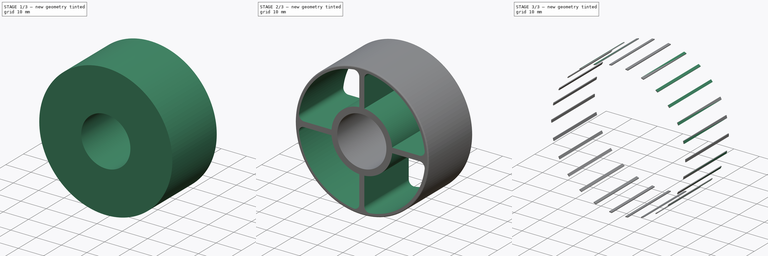
[diagram: build sequence overview — one tinted view per stage of 3, left to right]
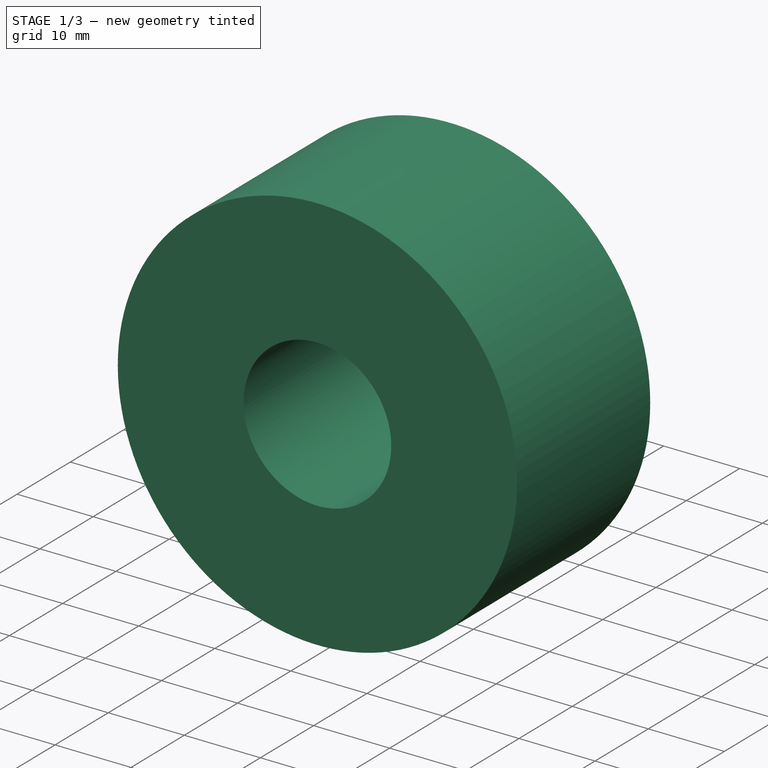
[diagram: stage 1 of 3 — iso view after this stage's code; geometry added in this stage tinted green]
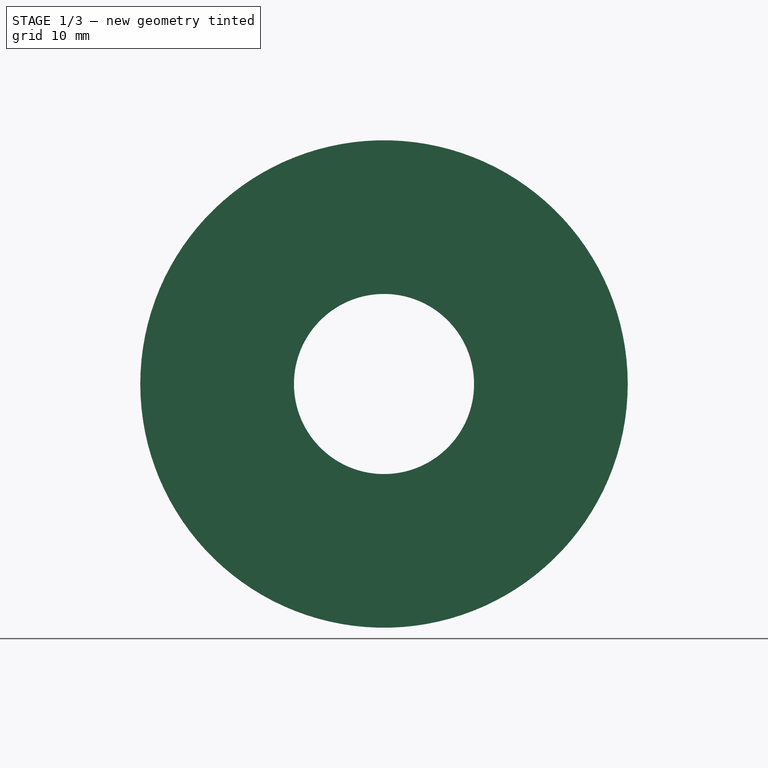
[diagram: stage 1 of 3 — front view after this stage's code; geometry added in this stage tinted green]
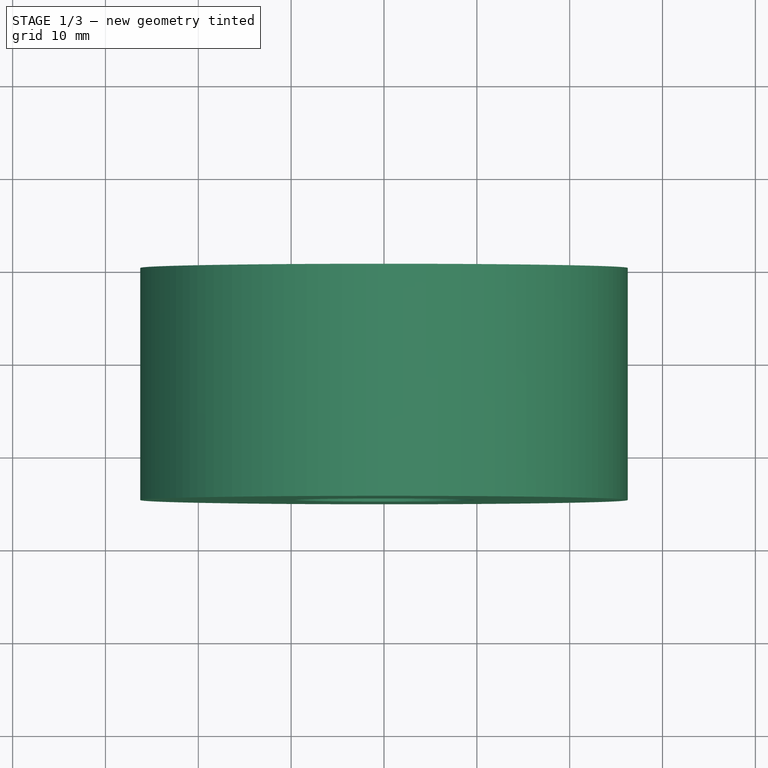
[diagram: stage 1 of 3 — top view after this stage's code; geometry added in this stage tinted green]
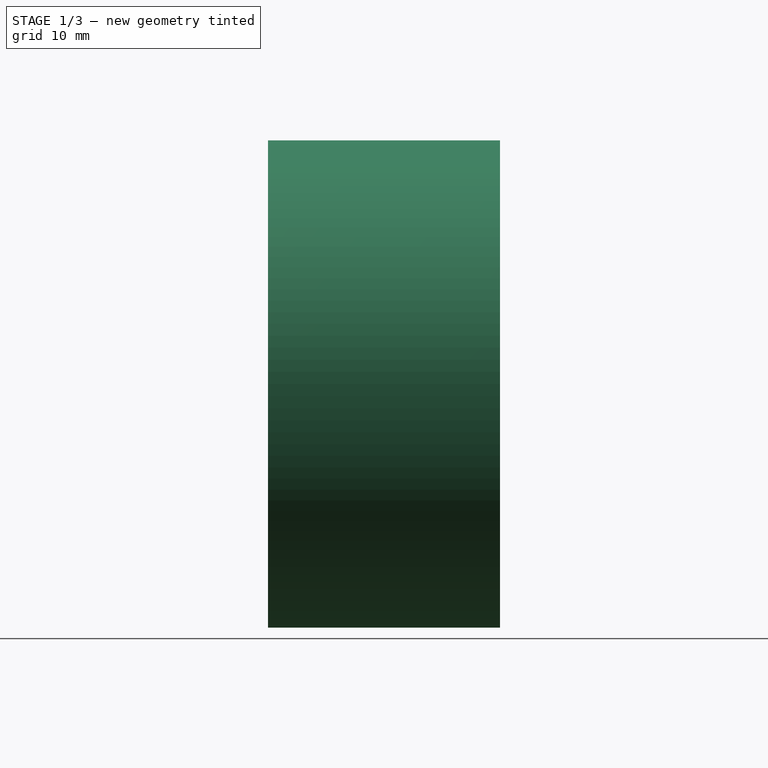
[diagram: stage 1 of 3 — right view after this stage's code; geometry added in this stage tinted green]
FCSTD DOCUMENT  (FreeCAD 0.18R16117 (Git))
Label: Roue centrale EVOL
License: All rights reserved
LicenseURL: http://en.wikipedia.org/wiki/All_rights_reserved
objects: Sketcher::SketchObject×4, PartDesign::Pad×2, PartDesign::Pocket×2, PartDesign::Body×2, PartDesign::Plane×2, PartDesign::Fillet×1, PartDesign::FeatureBase×1, Part::FeaturePython×1
note: 19 computed .brp shape members not serialized (recipe doc carries the construction recipe); baked Part::Feature solids carry a one-line shape summary decoded from their .brp

FEATURE [Sketcher::SketchObject] Sketch
  MapMode = 5
  Placement = pos=(0,0,0) rot=(1,0,0;1.5708rad)
  Support = -> [XZ_Plane]
  sketch-geometry (1):
    g0: Circle CenterX=0 CenterY=0 CenterZ=0 NormalX=0 NormalY=0 NormalZ=1 AngleXU=0 Radius=26.25
  constraints (2):
    c: Coincident(g0,g-1)
    c: Radius(g0) = 26.25
FEATURE [PartDesign::Pad] Pad
  Length = 25
  Length2 = 100
  Placement = pos=(0,0,0) rot=(1,0,0;1.5708rad)
  Profile = -> Sketch
  Type = 0
FEATURE [Sketcher::SketchObject] Sketch001
  MapMode = 5
  Placement = pos=(0,0,0) rot=(-1,0,0;1.5708rad)
  Support = -> [Pad]
  sketch-geometry (1):
    g0: Circle CenterX=0 CenterY=0 CenterZ=0 NormalX=0 NormalY=0 NormalZ=1 AngleXU=0 Radius=9.7
  constraints (2):
    c: Coincident(g0,g-1)
    c: Radius(g0) = 9.7
FEATURE [PartDesign::Pocket] Pocket
  BaseFeature = -> Pad
  Length = 5
  Length2 = 100
  Placement = pos=(0,0,0) rot=(1,0,0;1.5708rad)
  Profile = -> Sketch001
  Type = 1
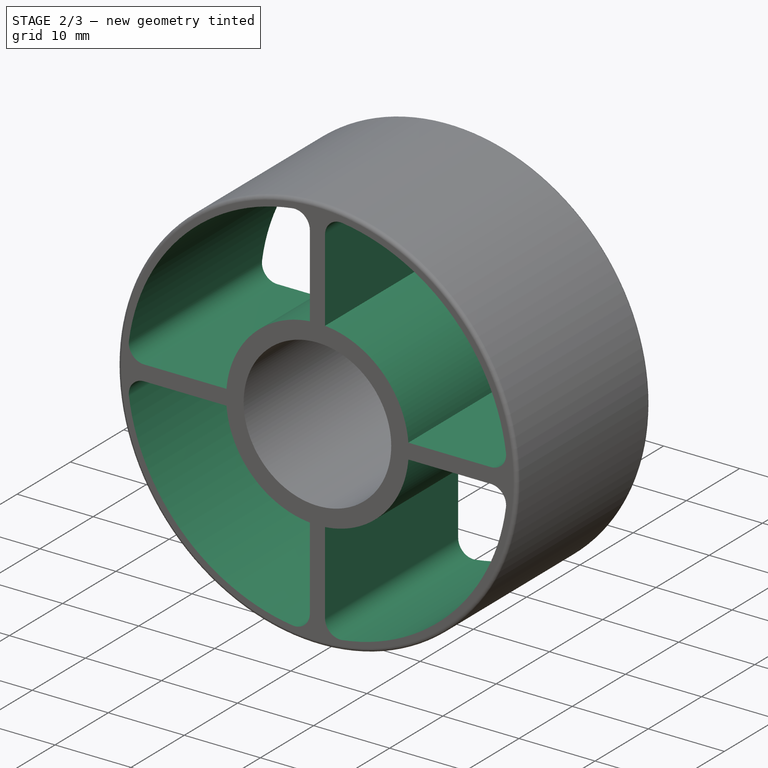
[diagram: stage 2 of 3 — iso view after this stage's code; geometry added in this stage tinted green]
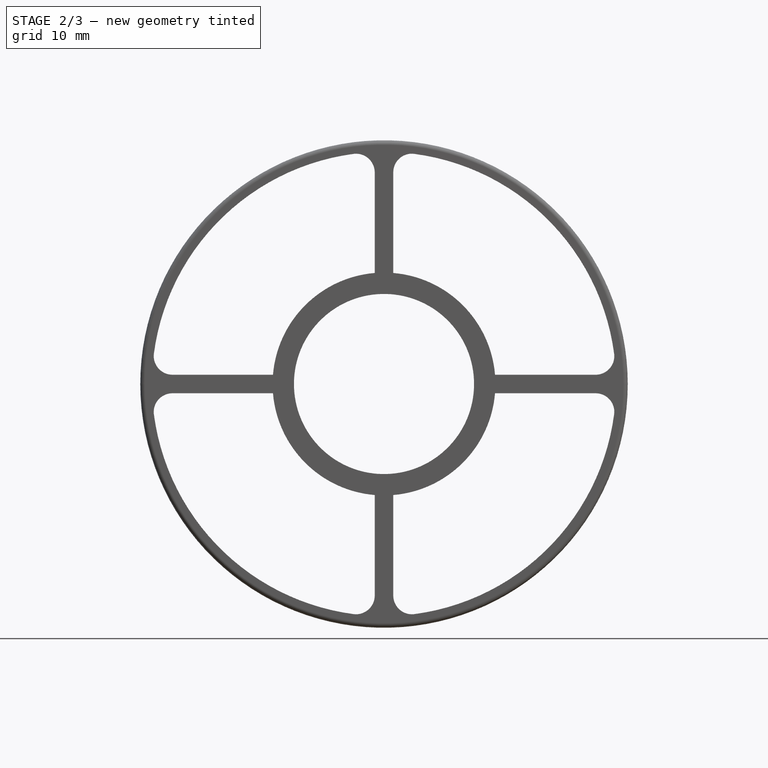
[diagram: stage 2 of 3 — front view after this stage's code; geometry added in this stage tinted green]
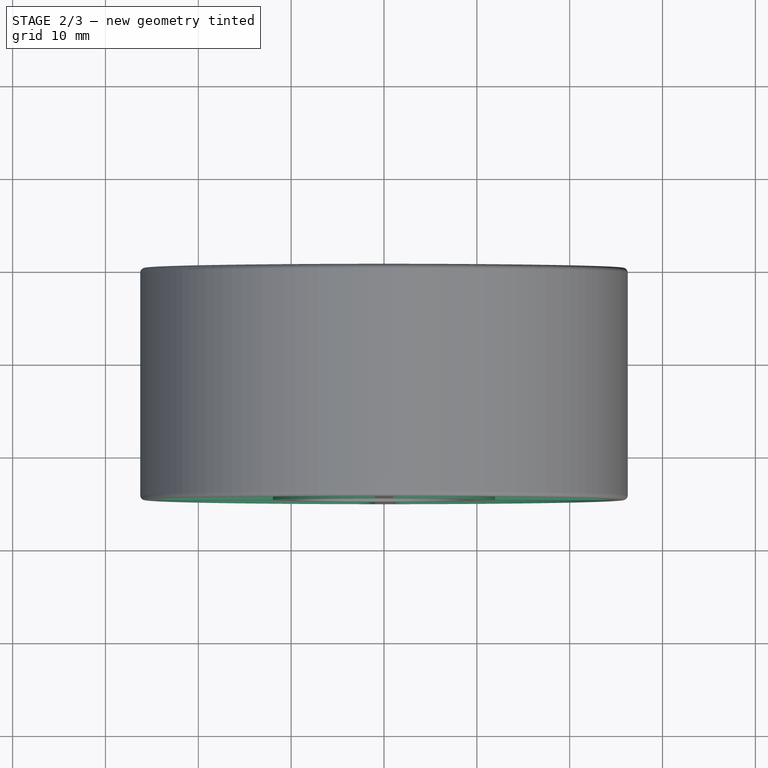
[diagram: stage 2 of 3 — top view after this stage's code; geometry added in this stage tinted green]
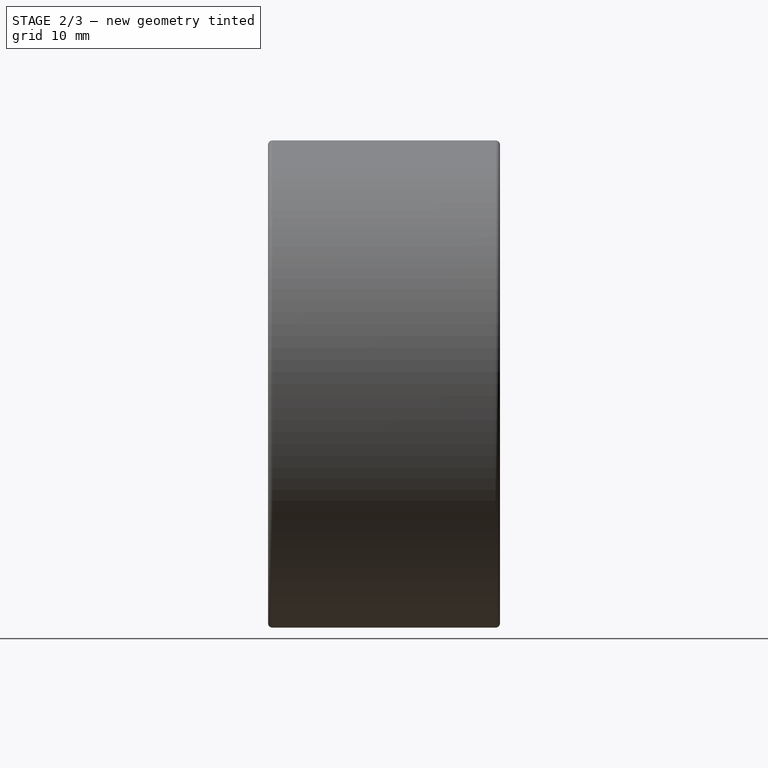
[diagram: stage 2 of 3 — right view after this stage's code; geometry added in this stage tinted green]
FEATURE [PartDesign::Fillet] Fillet
  Base = -> Pocket [Edge3,Edge2]
  BaseFeature = -> Pocket
  Placement = pos=(0,0,0) rot=(1,0,0;1.5708rad)
  Radius = 0.5
FEATURE [Sketcher::SketchObject] Sketch002
  MapMode = 5
  Placement = pos=(0,-25,1e-16) rot=(1,0,0;1.5708rad)
  Support = -> [Fillet]
  sketch-geometry (24):
    g0: LineSegment StartX=1 StartY=11.9583 StartZ=0 EndX=1 EndY=22.8035 EndZ=0
    g1: ArcOfCircle CenterX=0 CenterY=0 CenterZ=0 NormalX=0 NormalY=0 NormalZ=1 AngleXU=0 Radius=25 StartAngle=0.130807 EndAngle=1.43999
    g2: ArcOfCircle CenterX=0 CenterY=0 CenterZ=0 NormalX=0 NormalY=0 NormalZ=1 AngleXU=0 Radius=12 StartAngle=0.0834301 EndAngle=1.48737
    g3: LineSegment StartX=11.9583 StartY=1 StartZ=0 EndX=22.8035 EndY=1 EndZ=0
    g4: ArcOfCircle CenterX=3 CenterY=22.8035 CenterZ=0 NormalX=0 NormalY=0 NormalZ=1 AngleXU=0 Radius=2 StartAngle=1.43999 EndAngle=3.14159
    g5: ArcOfCircle CenterX=22.8035 CenterY=3 CenterZ=0 NormalX=0 NormalY=0 NormalZ=1 AngleXU=0 Radius=2 StartAngle=4.71239 EndAngle=6.41399
    g6: ArcOfCircle CenterX=0 CenterY=0 CenterZ=0 NormalX=0 NormalY=0 NormalZ=1 AngleXU=0 Radius=12 StartAngle=1.65423 EndAngle=3.05816
    g7: ArcOfCircle CenterX=0 CenterY=0 CenterZ=0 NormalX=0 NormalY=0 NormalZ=1 AngleXU=0 Radius=25 StartAngle=1.70247 EndAngle=3.00992
    g8: ArcOfCircle CenterX=0 CenterY=0 CenterZ=0 NormalX=0 NormalY=0 NormalZ=1 AngleXU=0 Radius=12 StartAngle=3.22502 EndAngle=4.62896
    g9: ArcOfCircle CenterX=0 CenterY=0 CenterZ=0 NormalX=0 NormalY=0 NormalZ=1 AngleXU=0 Radius=25 StartAngle=3.27327 EndAngle=4.58072
    g10: ArcOfCircle CenterX=0 CenterY=0 CenterZ=0 NormalX=0 NormalY=0 NormalZ=1 AngleXU=0 Radius=12 StartAngle=4.79582 EndAngle=6.19976
    g11: ArcOfCircle CenterX=0 CenterY=0 CenterZ=0 NormalX=0 NormalY=0 NormalZ=1 AngleXU=0 Radius=25 StartAngle=4.84406 EndAngle=6.15238
    g12: LineSegment StartX=-1 StartY=-22.7836 StartZ=0 EndX=-1 EndY=-11.9583 EndZ=0
    g13: LineSegment StartX=1 StartY=-11.9583 StartZ=0 EndX=1 EndY=-22.7836 EndZ=0
    g14: LineSegment StartX=11.9583 StartY=-1 StartZ=0 EndX=22.8035 EndY=-1 EndZ=0
    g15: LineSegment StartX=-1 StartY=11.9583 StartZ=0 EndX=-1 EndY=22.7836 EndZ=0
    g16: LineSegment StartX=-11.9583 StartY=1 StartZ=0 EndX=-22.7836 EndY=1 EndZ=0
    g17: LineSegment StartX=-11.9583 StartY=-1 StartZ=0 EndX=-22.7836 EndY=-1 EndZ=0
    g18: ArcOfCircle CenterX=-22.7836 CenterY=3.01746 CenterZ=0 NormalX=0 NormalY=0 NormalZ=1 AngleXU=0 Radius=2.01746 StartAngle=3.00992 EndAngle=4.71239
    g19: ArcOfCircle CenterX=-3.01746 CenterY=22.7836 CenterZ=0 NormalX=0 NormalY=0 NormalZ=1 AngleXU=0 Radius=2.01746 StartAngle=2e-16 EndAngle=1.70247
    g20: ArcOfCircle CenterX=-3.01746 CenterY=-22.7836 CenterZ=0 NormalX=0 NormalY=0 NormalZ=1 AngleXU=0 Radius=2.01746 StartAngle=4.58072 EndAngle=6.28319
    g21: ArcOfCircle CenterX=3.01746 CenterY=-22.7836 CenterZ=0 NormalX=0 NormalY=0 NormalZ=1 AngleXU=0 Radius=2.01746 StartAngle=3.14159 EndAngle=4.84406
    g22: ArcOfCircle CenterX=22.8035 CenterY=-3 CenterZ=0 NormalX=0 NormalY=0 NormalZ=1 AngleXU=0 Radius=2 StartAngle=6.15238 EndAngle=7.85398
    g23: ArcOfCircle CenterX=-22.7836 CenterY=-3.01746 CenterZ=0 NormalX=0 NormalY=0 NormalZ=1 AngleXU=0 Radius=2.01746 StartAngle=1.5708 EndAngle=3.27327
  constraints (64):
    c: Coincident(g1,g-1)
    c: Radius(g1) = 25
    c: Vertical(g0)
    c: Coincident(g2,g1)
    c: Radius(g2) = 12
    c: Coincident(g2,g0)
    c: Coincident(g3,g2)
    c: Horizontal(g3)
    c: DistanceY(g1,g2) = 1
    c: DistanceX(g1,g0) = 1
    c: Tangent(g0,g4) = 1.5708
    c: Tangent(g1,g4) = -1.5708
    c: Tangent(g1,g5) = -1.5708
    c: Tangent(g3,g5) = -1.5708
    c: DistanceX(g0,g4) = 2
    c: DistanceY(g3,g5) = 2
    c: Equal(g8,g2)
    c: Equal(g1,g9)
    c: Coincident(g12,g8)
    c: Vertical(g12)
    c: Vertical(g13)
    c: Vertical(g15)
    c: Horizontal(g16)
    c: Horizontal(g17)
    c: Horizontal(g14)
    c: Coincident(g14,g10)
    c: Coincident(g10,g13)
    c: Coincident(g15,g6)
    c: Coincident(g6,g16)
    c: Coincident(g9,g1)
    c: Coincident(g7,g1)
    c: Coincident(g6,g1)
    c: Coincident(g10,g1)
    c: Coincident(g11,g1)
    c: Coincident(g1,g8)
    c: Coincident(g8,g17)
    c: Equal(g10,g2)
    c: Equal(g6,g2)
    c: Equal(g11,g1)
    c: Equal(g7,g1)
    c: Tangent(g16,g18) = 1.5708
    c: Tangent(g7,g18) = -1.5708
    c: Tangent(g15,g19) = -1.5708
    c: Tangent(g7,g19) = -1.5708
    c: Tangent(g12,g20) = -1.5708
    c: Tangent(g9,g20) = -1.5708
    c: Tangent(g11,g21) = -1.5708
    c: Tangent(g13,g21) = -1.5708
    c: Tangent(g14,g22) = 1.5708
    c: Tangent(g11,g22) = -1.5708
    c: Tangent(g17,g23) = -1.5708
    c: Tangent(g9,g23) = -1.5708
    c: DistanceY(g22,g14) = 2
    c: DistanceY(g11,g21) = 2
    c: DistanceY(g9,g20) = 2
    c: DistanceX(g8,g1) = 1
    c: DistanceX(g1,g13) = 1
    c: DistanceX(g9,g23) = 2
    c: DistanceX(g7,g18) = 2
    c: DistanceY(g1,g6) = 1
    c: DistanceY(g8,g1) = 1
    c: DistanceX(g6,g1) = 1
    c: DistanceY(g10,g1) = 1
    c: DistanceY(g19,g7) = 2
FEATURE [PartDesign::Pocket] Pocket001
  BaseFeature = -> Fillet
  Length = 5
  Length2 = 100
  Placement = pos=(0,0,0) rot=(1,0,0;1.5708rad)
  Profile = -> Sketch002
  Type = 1
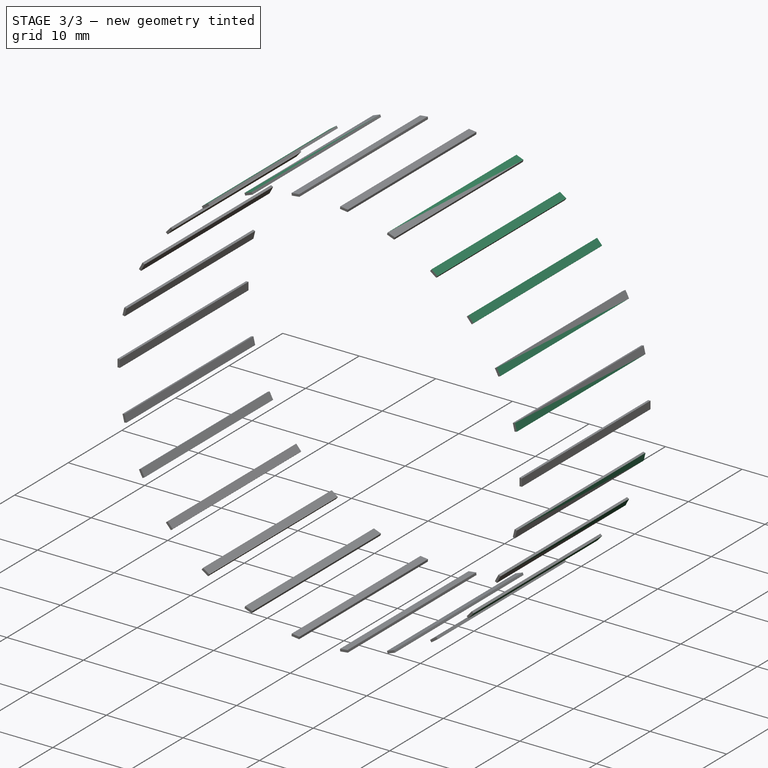
[diagram: stage 3 of 3 — iso view after this stage's code; geometry added in this stage tinted green]
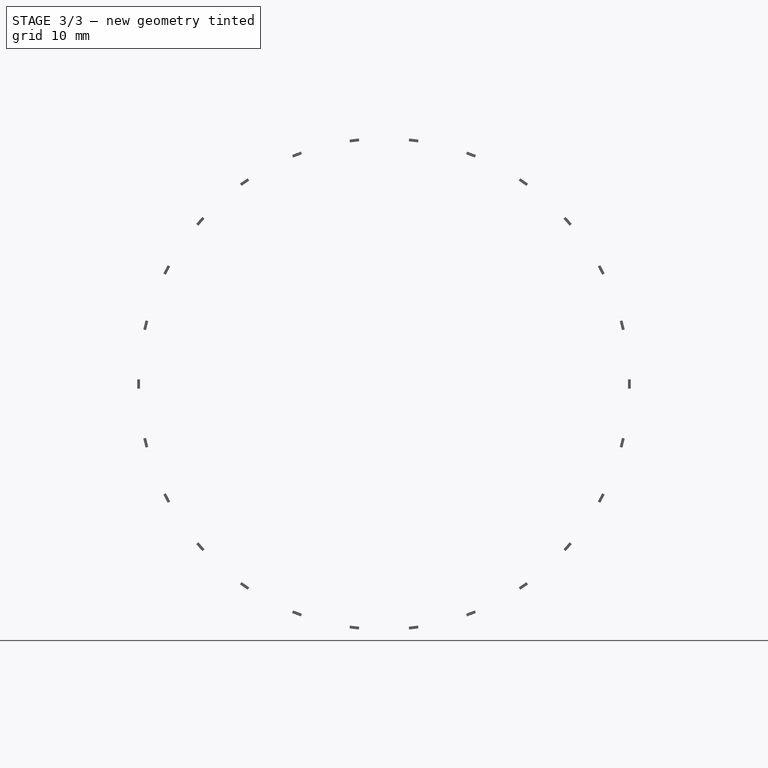
[diagram: stage 3 of 3 — front view after this stage's code; geometry added in this stage tinted green]
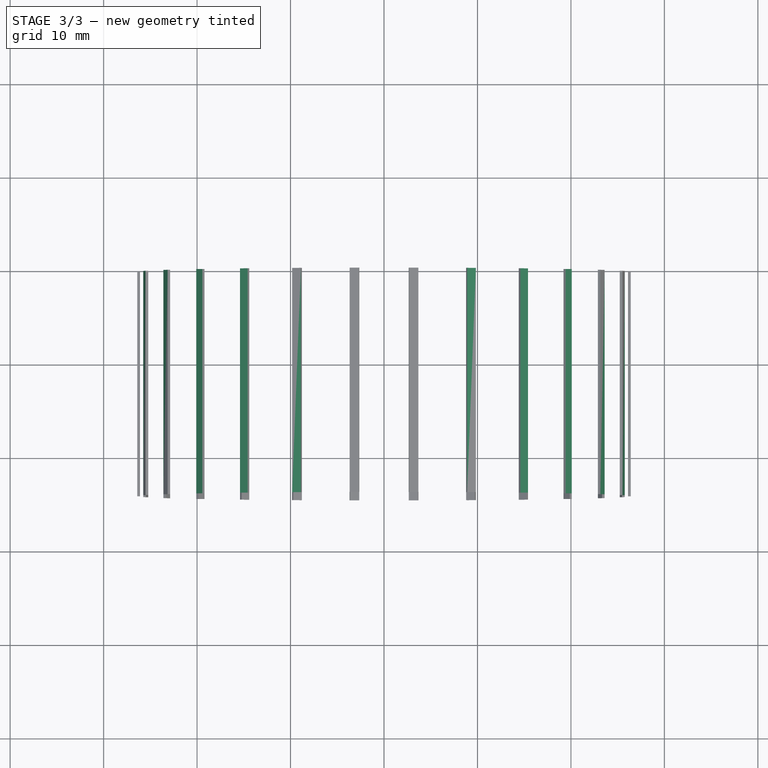
[diagram: stage 3 of 3 — top view after this stage's code; geometry added in this stage tinted green]
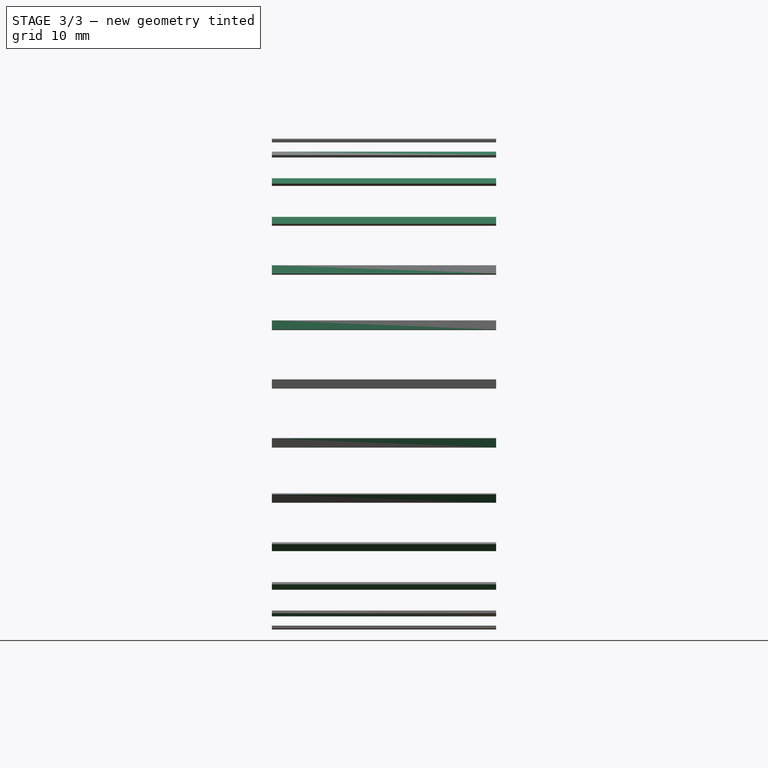
[diagram: stage 3 of 3 — right view after this stage's code; geometry added in this stage tinted green]
FEATURE [PartDesign::Body] Body
  Group = -> [Sketch,Pad,Sketch001,Pocket,Fillet,Sketch002,Pocket001]
  Origin = -> Origin
  Tip = -> Pocket001
FEATURE [PartDesign::Plane] DatumPlane001
  AttachmentOffset = pos=(0,0,0) rot=(0,-1,0;1.5708rad)
  Length = 39.7536
  MapMode = 7
  Placement = pos=(26.25,-0.5,1e-16) rot=(0.57735,0.57735,0.57735;2.0944rad)
  ResizeMode = 0
  Support = -> [Pocket001]
  Width = 25.2536
FEATURE [PartDesign::FeatureBase] BaseFeature
  BaseFeature = -> DatumPlane001
FEATURE [PartDesign::Plane] CopyDatumPlane001
  Length = 39.7536
  Placement = pos=(26.25,-0.5,1e-16) rot=(0.57735,0.57735,0.57735;2.0944rad)
  ResizeMode = 0
  Width = 25.2536
FEATURE [Sketcher::SketchObject] Sketch003
  MapMode = 5
  Placement = pos=(26.25,-0.5,1e-16) rot=(0.57735,0.57735,0.57735;2.0944rad)
  Support = -> [CopyDatumPlane001]
  sketch-geometry (4):
    g0: LineSegment StartX=-24 StartY=0.5 StartZ=0 EndX=0 EndY=0.5 EndZ=0
    g1: LineSegment StartX=0 StartY=0.5 StartZ=0 EndX=0 EndY=-0.5 EndZ=0
    g2: LineSegment StartX=0 StartY=-0.5 StartZ=0 EndX=-24 EndY=-0.5 EndZ=0
    g3: LineSegment StartX=-24 StartY=-0.5 StartZ=0 EndX=-24 EndY=0.5 EndZ=0
  constraints (11):
    c: Coincident(g0,g1)
    c: Coincident(g1,g2)
    c: Coincident(g2,g3)
    c: Coincident(g3,g0)
    c: Horizontal(g0)
    c: Horizontal(g2)
    c: Vertical(g3)
    c: Symmetric(g1,g0,g-1)
    c: PointOnObject(g0,g-2)
    c: DistanceX(g0,g0) = 24
    c: DistanceY(g3,g3) = 1
FEATURE [PartDesign::Pad] Pad001
  BaseFeature = -> BaseFeature
  Length = 0.3
  Length2 = 100
  Midplane = true
  Profile = -> Sketch003
  Reversed = true
  Type = 0
FEATURE [PartDesign::Body] Body001
  BaseFeature = -> DatumPlane001
  Group = -> [BaseFeature,CopyDatumPlane001,Sketch003,Pad001]
  Origin = -> Origin002
  Tip = -> Pad001
FEATURE [Part::FeaturePython] Array  # Draft array (typed FeaturePython)
  Angle = 360
  ArrayType = 1
  Axis = (0,1,0)
  Base = -> Pad001
  Center = (0,0,0)
  Fuse = false
  IntervalAxis = (0,0,0)
  IntervalX = (1,0,0)
  IntervalY = (0,1,0)
  IntervalZ = (0,0,1)
  NumberPolar = 26
  NumberX = 2
  NumberY = 2
  NumberZ = 1
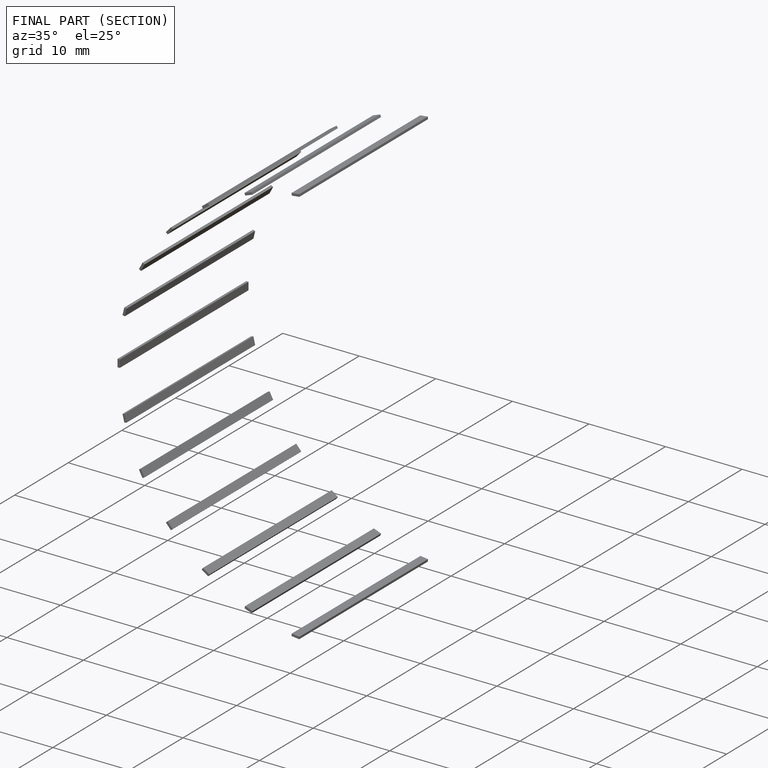
[diagram: finished part — half-section view (interior)]
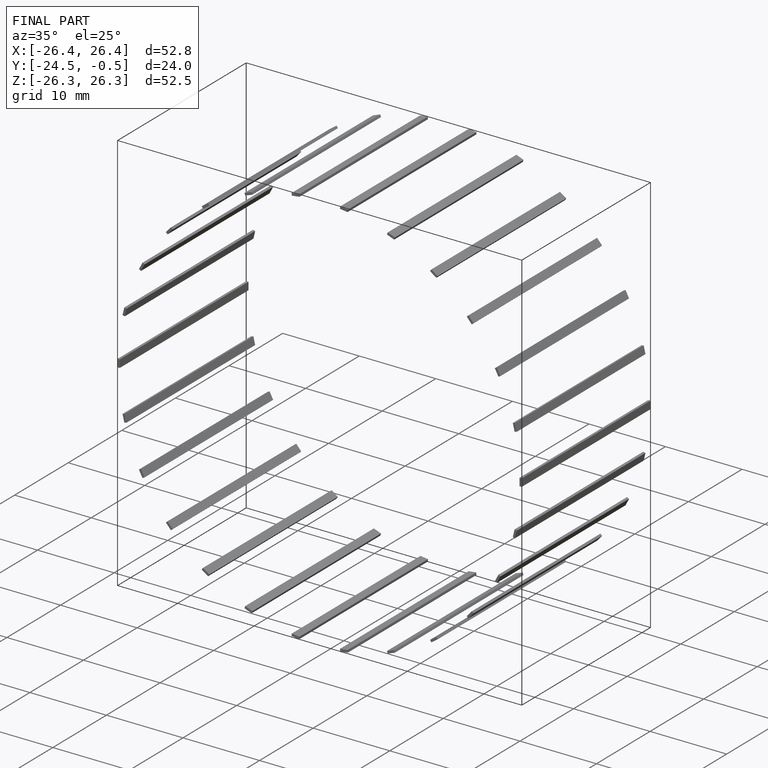
[diagram: finished part — iso view with bounding-box wireframe]
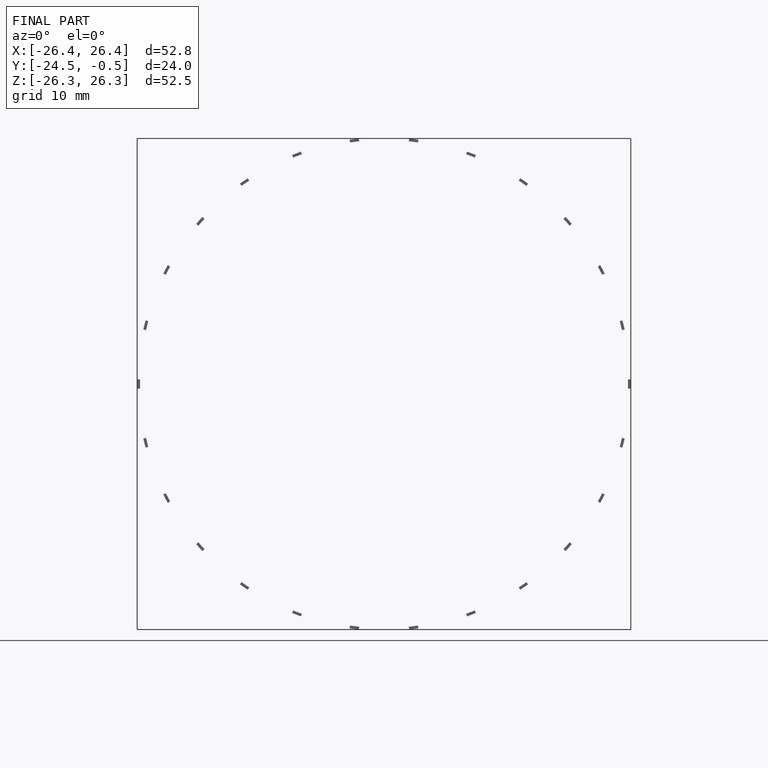
[diagram: finished part — front view with bounding-box wireframe]
